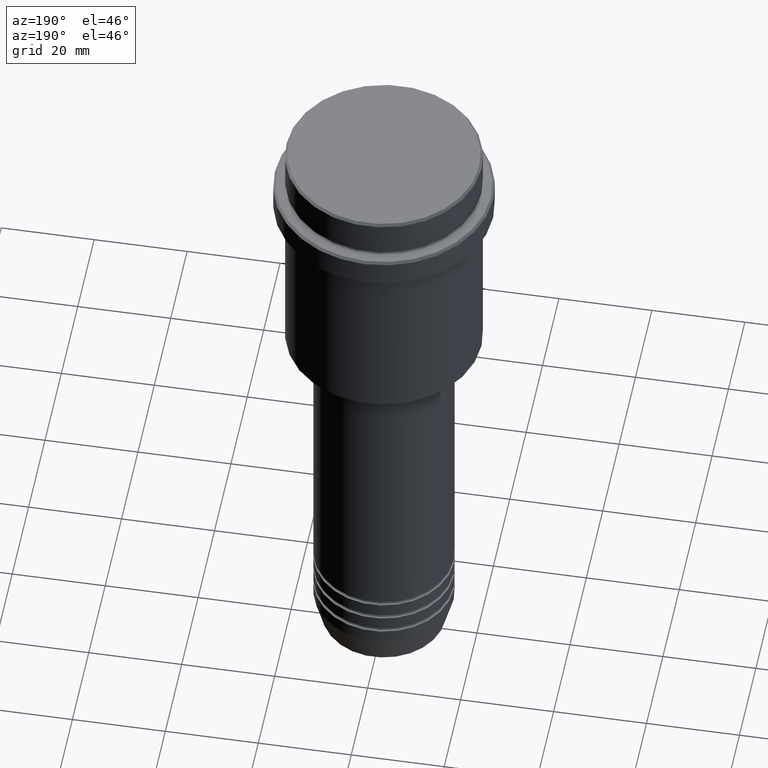
[diagram: clean part render]
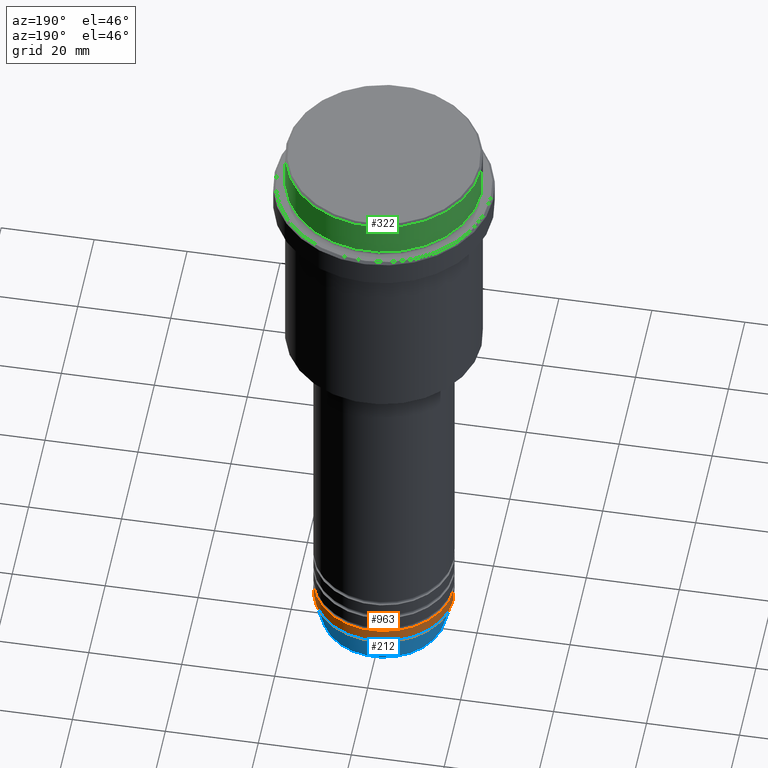
[diagram: same view with three faces highlighted in distinct colors, each labeled with its STEP entity id]
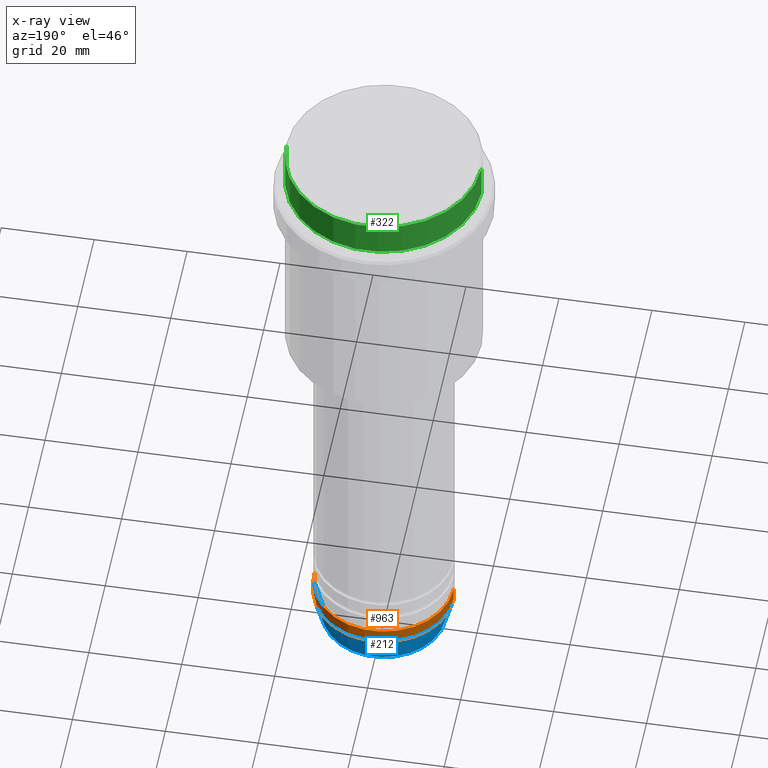
[diagram: x-ray of the same camera — body ghosted, the three highlighted faces saturated]
A machine part, auxiliary view with three faces highlighted in distinct colors.
The next image is the same camera in x-ray (body ghosted, the three faces saturated) — at least one of them is partly hidden behind the body in this view.
Their STEP definitions:

[orange] entity #963 — the highlighted cylindrical surface (partial cylindrical patch) has radius 15 mm, axis along (-0, -0, 1).
#24 = CARTESIAN_POINT ( 'NONE',  ( 0.000000000000000000, 0.000000000000000000, -130.0000000000000000 ) ) ;
#56 = ORIENTED_EDGE ( 'NONE', *, *, #623, .T. ) ;
#97 = LINE ( 'NONE', #107, #948 ) ;
#107 = CARTESIAN_POINT ( 'NONE',  ( 15.00000000000000000, 0.000000000000000000, 0.000000000000000000 ) ) ;
#123 = ORIENTED_EDGE ( 'NONE', *, *, #1276, .F. ) ;
#147 = VERTEX_POINT ( 'NONE', #595 ) ;
#151 = LINE ( 'NONE', #453, #1339 ) ;
#214 = VERTEX_POINT ( 'NONE', #297 ) ;
#237 = CARTESIAN_POINT ( 'NONE',  ( 0.000000000000000000, 0.000000000000000000, 0.000000000000000000 ) ) ;
#256 = FACE_OUTER_BOUND ( 'NONE', #565, .T. ) ;
#257 = CARTESIAN_POINT ( 'NONE',  ( 15.00000000000000000, 0.000000000000000000, -130.0000000000000000 ) ) ;
#297 = CARTESIAN_POINT ( 'NONE',  ( -15.00000000000000000, 1.836970198721029589E-15, -133.0000000000000000 ) ) ;
#350 = DIRECTION ( 'NONE',  ( 1.000000000000000000, 0.000000000000000000, 0.000000000000000000 ) ) ;
#351 = CIRCLE ( 'NONE', #369, 15.00000000000000000 ) ;
#353 = CARTESIAN_POINT ( 'NONE',  ( 15.00000000000000000, 0.000000000000000000, -133.0000000000000000 ) ) ;
#369 = AXIS2_PLACEMENT_3D ( 'NONE', #684, #919, #1021 ) ;
#444 = CIRCLE ( 'NONE', #541, 15.00000000000000000 ) ;
#453 = CARTESIAN_POINT ( 'NONE',  ( -15.00000000000000000, 1.836970198721029589E-15, 0.000000000000000000 ) ) ;
#458 = EDGE_CURVE ( 'NONE', #519, #512, #97, .T. ) ;
#512 = VERTEX_POINT ( 'NONE', #257 ) ;
#519 = VERTEX_POINT ( 'NONE', #353 ) ;
#541 = AXIS2_PLACEMENT_3D ( 'NONE', #24, #759, #350 ) ;
#565 = EDGE_LOOP ( 'NONE', ( #753, #56, #123, #960 ) ) ;
#595 = CARTESIAN_POINT ( 'NONE',  ( -15.00000000000000000, 1.836970198721029589E-15, -130.0000000000000000 ) ) ;
#623 = EDGE_CURVE ( 'NONE', #214, #147, #151, .T. ) ;
#637 = EDGE_CURVE ( 'NONE', #519, #214, #351, .T. ) ;
#684 = CARTESIAN_POINT ( 'NONE',  ( 0.000000000000000000, 0.000000000000000000, -133.0000000000000000 ) ) ;
#753 = ORIENTED_EDGE ( 'NONE', *, *, #637, .T. ) ;
#759 = DIRECTION ( 'NONE',  ( -0.000000000000000000, -0.000000000000000000, 1.000000000000000000 ) ) ;
#908 = AXIS2_PLACEMENT_3D ( 'NONE', #237, #918, #1010 ) ;
#918 = DIRECTION ( 'NONE',  ( -0.000000000000000000, -0.000000000000000000, 1.000000000000000000 ) ) ;
#919 = DIRECTION ( 'NONE',  ( -0.000000000000000000, -0.000000000000000000, 1.000000000000000000 ) ) ;
#948 = VECTOR ( 'NONE', #1413, 1000.000000000000000 ) ;
#960 = ORIENTED_EDGE ( 'NONE', *, *, #458, .F. ) ;
#963 = ADVANCED_FACE ( 'NONE', ( #256 ), #1217, .T. ) ;
#1010 = DIRECTION ( 'NONE',  ( 1.000000000000000000, 0.000000000000000000, 0.000000000000000000 ) ) ;
#1021 = DIRECTION ( 'NONE',  ( 1.000000000000000000, 0.000000000000000000, 0.000000000000000000 ) ) ;
#1217 = CYLINDRICAL_SURFACE ( 'NONE', #908, 15.00000000000000000 ) ;
#1276 = EDGE_CURVE ( 'NONE', #512, #147, #444, .T. ) ;
#1331 = DIRECTION ( 'NONE',  ( -0.000000000000000000, -0.000000000000000000, 1.000000000000000000 ) ) ;
#1339 = VECTOR ( 'NONE', #1331, 1000.000000000000000 ) ;
#1413 = DIRECTION ( 'NONE',  ( -0.000000000000000000, -0.000000000000000000, 1.000000000000000000 ) ) ;

[blue] entity #212 — the highlighted conical surface has half-angle 15 deg.
#38 = CARTESIAN_POINT ( 'NONE',  ( -13.22365507213719837, 1.728200442216588780E-15, -139.6294095225512706 ) ) ;
#86 = VERTEX_POINT ( 'NONE', #163 ) ;
#89 = DIRECTION ( 'NONE',  ( 0.2588190451025210725, 0.000000000000000000, 0.9659258262890680902 ) ) ;
#92 = VERTEX_POINT ( 'NONE', #38 ) ;
#163 = CARTESIAN_POINT ( 'NONE',  ( 13.22365507213719660, 0.000000000000000000, -139.6294095225512706 ) ) ;
#196 = DIRECTION ( 'NONE',  ( 1.000000000000000000, 0.000000000000000000, 0.000000000000000000 ) ) ;
#212 = ADVANCED_FACE ( 'NONE', ( #1073 ), #420, .T. ) ;
#214 = VERTEX_POINT ( 'NONE', #297 ) ;
#216 = CARTESIAN_POINT ( 'NONE',  ( -15.00000000000000000, 1.836970198721029589E-15, -133.0000000000000000 ) ) ;
#297 = CARTESIAN_POINT ( 'NONE',  ( -15.00000000000000000, 1.836970198721029589E-15, -133.0000000000000000 ) ) ;
#347 = DIRECTION ( 'NONE',  ( 1.000000000000000000, 0.000000000000000000, 0.000000000000000000 ) ) ;
#351 = CIRCLE ( 'NONE', #369, 15.00000000000000000 ) ;
#353 = CARTESIAN_POINT ( 'NONE',  ( 15.00000000000000000, 0.000000000000000000, -133.0000000000000000 ) ) ;
#369 = AXIS2_PLACEMENT_3D ( 'NONE', #684, #919, #1021 ) ;
#371 = VECTOR ( 'NONE', #89, 1000.000000000000114 ) ;
#420 = CONICAL_SURFACE ( 'NONE', #721, 15.00000000000000000, 0.2617993877991497964 ) ;
#433 = ORIENTED_EDGE ( 'NONE', *, *, #1146, .F. ) ;
#465 = CIRCLE ( 'NONE', #972, 13.22365507213719660 ) ;
#493 = CARTESIAN_POINT ( 'NONE',  ( 0.000000000000000000, 0.000000000000000000, -133.0000000000000000 ) ) ;
#496 = EDGE_LOOP ( 'NONE', ( #872, #1416, #1047, #433 ) ) ;
#519 = VERTEX_POINT ( 'NONE', #353 ) ;
#522 = CARTESIAN_POINT ( 'NONE',  ( 15.00000000000000000, 0.000000000000000000, -133.0000000000000000 ) ) ;
#549 = CARTESIAN_POINT ( 'NONE',  ( 0.000000000000000000, 0.000000000000000000, -139.6294095225512706 ) ) ;
#563 = VECTOR ( 'NONE', #989, 1000.000000000000114 ) ;
#637 = EDGE_CURVE ( 'NONE', #519, #214, #351, .T. ) ;
#664 = LINE ( 'NONE', #216, #563 ) ;
#684 = CARTESIAN_POINT ( 'NONE',  ( 0.000000000000000000, 0.000000000000000000, -133.0000000000000000 ) ) ;
#721 = AXIS2_PLACEMENT_3D ( 'NONE', #493, #944, #196 ) ;
#783 = DIRECTION ( 'NONE',  ( -0.000000000000000000, -0.000000000000000000, 1.000000000000000000 ) ) ;
#872 = ORIENTED_EDGE ( 'NONE', *, *, #945, .T. ) ;
#919 = DIRECTION ( 'NONE',  ( -0.000000000000000000, -0.000000000000000000, 1.000000000000000000 ) ) ;
#944 = DIRECTION ( 'NONE',  ( -0.000000000000000000, -0.000000000000000000, 1.000000000000000000 ) ) ;
#945 = EDGE_CURVE ( 'NONE', #86, #92, #465, .T. ) ;
#972 = AXIS2_PLACEMENT_3D ( 'NONE', #549, #783, #347 ) ;
#989 = DIRECTION ( 'NONE',  ( -0.2588190451025210725, 3.169619151431769255E-17, 0.9659258262890680902 ) ) ;
#1021 = DIRECTION ( 'NONE',  ( 1.000000000000000000, 0.000000000000000000, 0.000000000000000000 ) ) ;
#1047 = ORIENTED_EDGE ( 'NONE', *, *, #637, .F. ) ;
#1073 = FACE_OUTER_BOUND ( 'NONE', #496, .T. ) ;
#1086 = LINE ( 'NONE', #522, #371 ) ;
#1146 = EDGE_CURVE ( 'NONE', #86, #519, #1086, .T. ) ;
#1284 = EDGE_CURVE ( 'NONE', #92, #214, #664, .T. ) ;
#1416 = ORIENTED_EDGE ( 'NONE', *, *, #1284, .T. ) ;

[green] entity #322 — the highlighted cylindrical surface (partial cylindrical patch) has radius 21 mm, axis along (-0, -0, 1).
#9 = VECTOR ( 'NONE', #991, 1000.000000000000000 ) ;
#67 = CARTESIAN_POINT ( 'NONE',  ( 21.00000000000000000, 0.000000000000000000, -7.999999999999998224 ) ) ;
#69 = FACE_OUTER_BOUND ( 'NONE', #1340, .T. ) ;
#75 = DIRECTION ( 'NONE',  ( 1.000000000000000000, 0.000000000000000000, 0.000000000000000000 ) ) ;
#105 = CARTESIAN_POINT ( 'NONE',  ( 0.000000000000000000, 0.000000000000000000, -7.999999999999998224 ) ) ;
#108 = ORIENTED_EDGE ( 'NONE', *, *, #340, .T. ) ;
#184 = VERTEX_POINT ( 'NONE', #1036 ) ;
#266 = CIRCLE ( 'NONE', #1150, 21.00000000000000000 ) ;
#278 = ORIENTED_EDGE ( 'NONE', *, *, #915, .T. ) ;
#301 = CARTESIAN_POINT ( 'NONE',  ( -21.00000000000000000, 2.571758278209441661E-15, -7.999999999999998224 ) ) ;
#316 = DIRECTION ( 'NONE',  ( 0.000000000000000000, 0.000000000000000000, -1.000000000000000000 ) ) ;
#321 = CARTESIAN_POINT ( 'NONE',  ( 0.000000000000000000, 0.000000000000000000, -0.5000000000000247580 ) ) ;
#322 = ADVANCED_FACE ( 'NONE', ( #69 ), #728, .T. ) ;
#335 = LINE ( 'NONE', #1412, #9 ) ;
#340 = EDGE_CURVE ( 'NONE', #184, #1271, #266, .T. ) ;
#529 = DIRECTION ( 'NONE',  ( -0.000000000000000000, -0.000000000000000000, 1.000000000000000000 ) ) ;
#540 = AXIS2_PLACEMENT_3D ( 'NONE', #105, #529, #542 ) ;
#542 = DIRECTION ( 'NONE',  ( 1.000000000000000000, 0.000000000000000000, 0.000000000000000000 ) ) ;
#619 = DIRECTION ( 'NONE',  ( -0.000000000000000000, -0.000000000000000000, 1.000000000000000000 ) ) ;
#658 = DIRECTION ( 'NONE',  ( 1.000000000000000000, 0.000000000000000000, 0.000000000000000000 ) ) ;
#669 = VERTEX_POINT ( 'NONE', #301 ) ;
#675 = VECTOR ( 'NONE', #690, 1000.000000000000000 ) ;
#683 = LINE ( 'NONE', #1122, #675 ) ;
#690 = DIRECTION ( 'NONE',  ( -0.000000000000000000, -0.000000000000000000, 1.000000000000000000 ) ) ;
#728 = CYLINDRICAL_SURFACE ( 'NONE', #1039, 21.00000000000000000 ) ;
#748 = VERTEX_POINT ( 'NONE', #67 ) ;
#825 = EDGE_CURVE ( 'NONE', #748, #1271, #335, .T. ) ;
#893 = CARTESIAN_POINT ( 'NONE',  ( 21.00000000000000000, 0.000000000000000000, -0.5000000000000247580 ) ) ;
#915 = EDGE_CURVE ( 'NONE', #748, #669, #1197, .T. ) ;
#991 = DIRECTION ( 'NONE',  ( -0.000000000000000000, -0.000000000000000000, 1.000000000000000000 ) ) ;
#1036 = CARTESIAN_POINT ( 'NONE',  ( -21.00000000000000000, 2.571758278209441661E-15, -0.5000000000000247580 ) ) ;
#1039 = AXIS2_PLACEMENT_3D ( 'NONE', #1163, #619, #75 ) ;
#1061 = EDGE_CURVE ( 'NONE', #669, #184, #683, .T. ) ;
#1122 = CARTESIAN_POINT ( 'NONE',  ( -21.00000000000000000, 2.571758278209441661E-15, 0.000000000000000000 ) ) ;
#1150 = AXIS2_PLACEMENT_3D ( 'NONE', #321, #316, #658 ) ;
#1163 = CARTESIAN_POINT ( 'NONE',  ( 0.000000000000000000, 0.000000000000000000, 0.000000000000000000 ) ) ;
#1197 = CIRCLE ( 'NONE', #540, 21.00000000000000000 ) ;
#1252 = ORIENTED_EDGE ( 'NONE', *, *, #1061, .T. ) ;
#1271 = VERTEX_POINT ( 'NONE', #893 ) ;
#1340 = EDGE_LOOP ( 'NONE', ( #278, #1252, #108, #1371 ) ) ;
#1371 = ORIENTED_EDGE ( 'NONE', *, *, #825, .F. ) ;
#1412 = CARTESIAN_POINT ( 'NONE',  ( 21.00000000000000000, 0.000000000000000000, 0.000000000000000000 ) ) ;